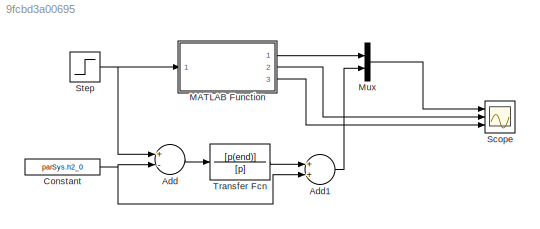
MODEL slx_9fcbd3a00695
KIND model
CONFIG AbsTol = auto
CONFIG FixedStep = auto
CONFIG MaxStep = auto
CONFIG MinStep = auto
CONFIG RelTol = 1e-3
CONFIG SampleTimeConstraint = Unconstrained
CONFIG Solver = VariableStepAuto
CONFIG SolverMode = Auto
CONFIG SolverName = VariableStepAuto
CONFIG StartTime = 0.0
CONFIG StopTime = 400
BLOCK [Sum] Add
  InputSameDT = off
  Inputs = +-
  OutDataTypeStr = Inherit: Inherit via internal rule
  Ports = [2, 1]
  SaturateOnIntegerOverflow = off
BLOCK [Sum] Add1
  InputSameDT = off
  OutDataTypeStr = Inherit: Inherit via internal rule
  Ports = [2, 1]
  SaturateOnIntegerOverflow = off
BLOCK [Constant] Constant
  Value = parSys.h2_0
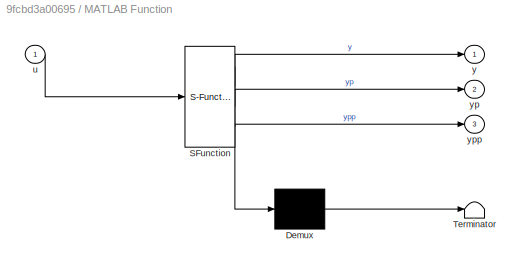
BLOCK [SubSystem] MATLAB Function
  ErrorFcn = Stateflow.Translate.translate
  PermitHierarchicalResolution = ExplicitOnly
  Ports = [1, 3]
  RequestExecContextInheritance = off
  SFBlockType = MATLAB Function
  SystemSampleTime = parSollwertfilter.Ta
  TreatAsAtomicUnit = on
  Variant = off
BLOCK [Demux] MATLAB Function/ Demux 
  Outputs = 1
  Ports = [1, 1]
BLOCK [S-Function] MATLAB Function/ SFunction 
  EnableBusSupport = on
  FunctionName = sf_sfun
  Parameters = parSollwertfilter,parSys
  PortCounts = [1 4]
  Ports = [1, 4]
  SFunctionDeploymentMode = off
  Tag = Stateflow S-Function Sollwertgenerator 2
BLOCK [Terminator] MATLAB Function/ Terminator 
BLOCK [Inport] MATLAB Function/u
  IconDisplay = Port number
BLOCK [Outport] MATLAB Function/y
  IconDisplay = Port number
BLOCK [Outport] MATLAB Function/yp
  IconDisplay = Port number
  Port = 2
BLOCK [Outport] MATLAB Function/ypp
  IconDisplay = Port number
  Port = 3
BLOCK [Mux] Mux
  DisplayOption = bar
  Inputs = 2
  Ports = [2, 1]
BLOCK [Scope] Scope
  NumInputPorts = 3
  Ports = [3]
  ScopeSpecificationString = Simulink.scopes.TimeScopeBlockCfg('CurrentConfiguration', extmgr.ConfigurationSet(extmgr.Configuration('Core','General UI',true),extmgr.Configuration('Core','Source UI',true),extmgr.Configuration('Sources','WiredSimulink',true),extmgr.Configuration('Visuals','Time Domain',true,'SerializedDisplays',{struct('MinYLimReal','0.08757','MaxYLimReal','0.21189','YLabelReal','','MinYLimMag','0.08757','MaxYL...<+2821ch>
BLOCK [Step] Step
  After = 0.2
  Before = 0.1
  SampleTime = 0
BLOCK [TransferFcn] Transfer Fcn
  Denominator = [p]
  Numerator = [p(end)]
LINE Add1:1 -> Mux:2
LINE Add:1 -> Transfer Fcn:1
NET Constant:1 -> Add1:2, Add:2
LINE MATLAB Function:1 -> Mux:1
LINE MATLAB Function:2 -> Scope:2
LINE MATLAB Function:3 -> Scope:3
LINE Mux:1 -> Scope:1
NET Step:1 -> Add:1, MATLAB Function:1
LINE Transfer Fcn:1 -> Add1:1
note: NET lines group one-source signal fan-out (src -> all destinations, sorted); 1:1 wires keep LINE
CHART MATLAB Function states=1 transitions=1
  STATE_LABEL 'eML_blk_kernel()'
  STATE_LABEL 'SCRIPT:\nfunction [y,yp,ypp] = sollwertfilter(u, parSollwertfilter, parSys)\npersistent x;\n\nu = u-parSys.h2_0; % Anfangswert abziehen\n\na=parSollwertfilter.a;\nb=parSollwertfilter.b;\nc=parSollwertfilter.c;\nd=parSollwertfilter.d;\n\nif(isempty(x))\n    x0_Filter=parSollwertfilter.x0_Filter;\n    x=x0_Filter;\nend\n\nyt=c*x+d*u;\ny=yt(1)+parSys.h2_0; % Anfangswert wieder addieren\nyp=yt(2);\nypp=yt(3);\n\nx=a*x+b*u...<+2ch>'
